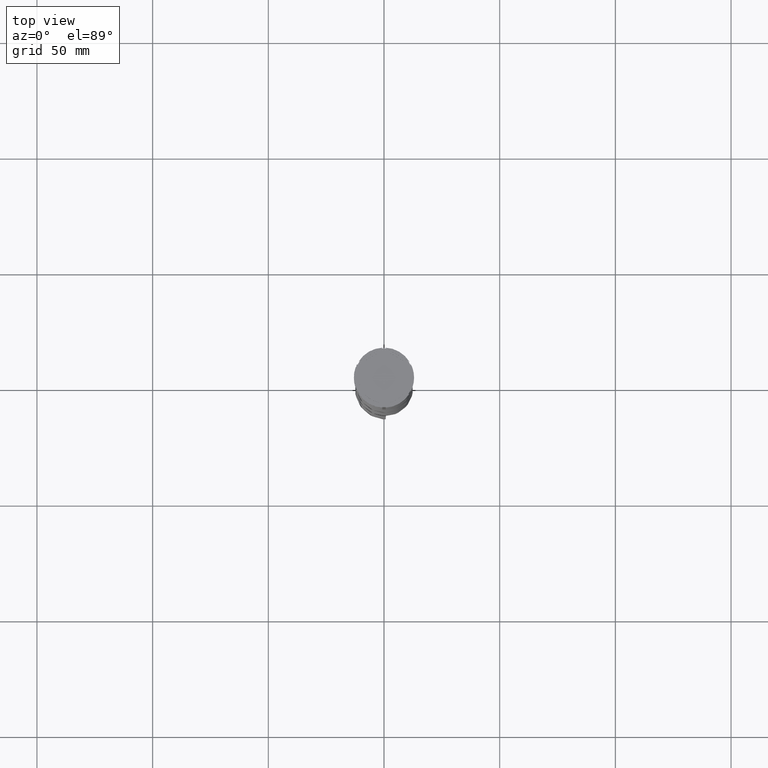
[diagram: clean part render]
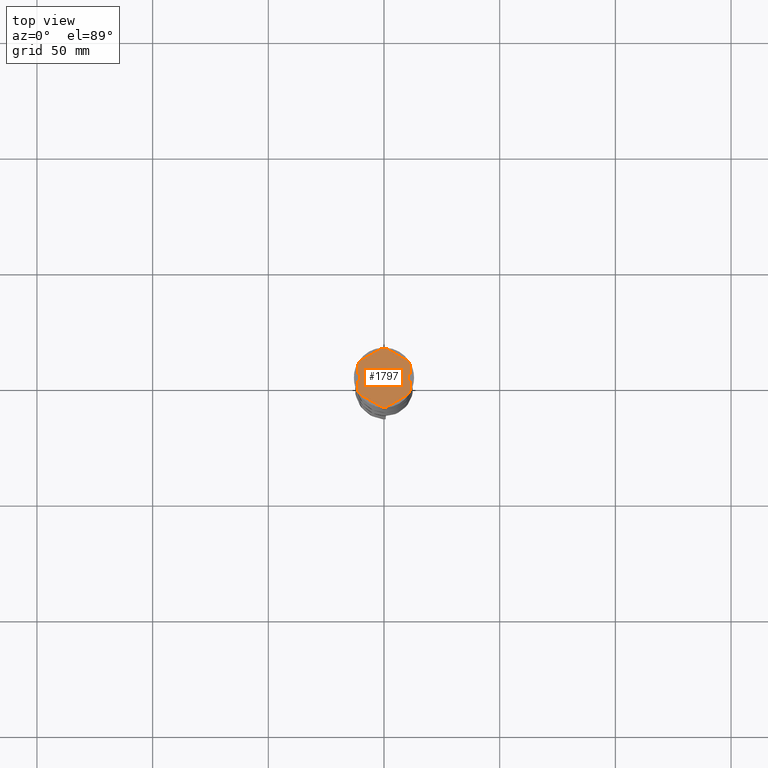
[diagram: same view with one face highlighted and labeled with its STEP entity id]
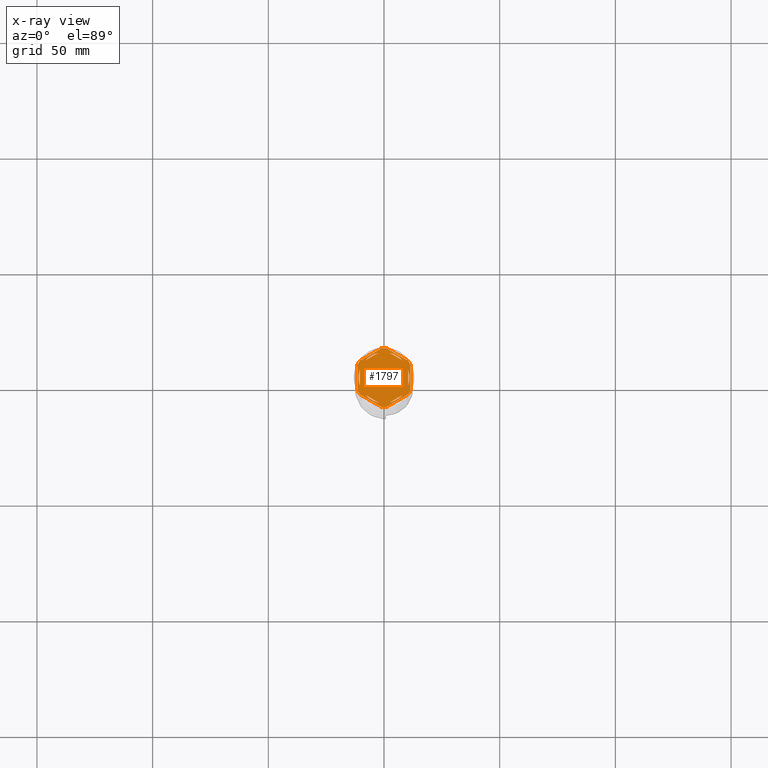
[diagram: x-ray of the same camera — body ghosted, the highlighted face saturated]
A machine part, top view. The second image highlights one B-rep face of the part: STEP entity #1797.
The next image is the same camera in x-ray: the body ghosted, the highlighted face saturated — about 0% of this face is hidden behind the body in this view.
In plain terms, the highlighted planar face has unit normal (0, 0, 1).
Its self-contained STEP definition (entity closure, byte-faithful):
#19 = ORIENTED_EDGE ( 'NONE', *, *, #2577, .T. ) ;
#22 = DIRECTION ( 'NONE',  ( 0.8660254037844387076, -0.4999999999999999445, 0.000000000000000000 ) ) ;
#77 = LINE ( 'NONE', #2863, #2668 ) ;
#79 = CARTESIAN_POINT ( 'NONE',  ( -11.50000000000000000, -6.639528095680696573, -1.000000000000000000 ) ) ;
#88 = DIRECTION ( 'NONE',  ( 1.000000000000000000, 0.000000000000000000, 0.000000000000000000 ) ) ;
#117 = VECTOR ( 'NONE', #1645, 999.9999999999998863 ) ;
#123 = VECTOR ( 'NONE', #3462, 1000.000000000000227 ) ;
#127 = CARTESIAN_POINT ( 'NONE',  ( 1.083095244168774673, -12.65373086058253982, -1.000000000000000000 ) ) ;
#131 = ORIENTED_EDGE ( 'NONE', *, *, #3052, .T. ) ;
#166 = PLANE ( 'NONE',  #1048 ) ;
#188 = ORIENTED_EDGE ( 'NONE', *, *, #2608, .F. ) ;
#212 = LINE ( 'NONE', #1259, #3471 ) ;
#245 = AXIS2_PLACEMENT_3D ( 'NONE', #1696, #3071, #622 ) ;
#312 = CIRCLE ( 'NONE', #1405, 11.00000000000000000 ) ;
#357 = EDGE_CURVE ( 'NONE', #1358, #3696, #312, .T. ) ;
#373 = ORIENTED_EDGE ( 'NONE', *, *, #2850, .F. ) ;
#410 = CARTESIAN_POINT ( 'NONE',  ( 8.089454172900138573, 7.453907108661105063, -1.000000000000000888 ) ) ;
#415 = VERTEX_POINT ( 'NONE', #803 ) ;
#460 = DIRECTION ( 'NONE',  ( -0.8660254037844385966, -0.5000000000000001110, 0.000000000000000000 ) ) ;
#464 = ORIENTED_EDGE ( 'NONE', *, *, #3767, .F. ) ;
#484 = ORIENTED_EDGE ( 'NONE', *, *, #3132, .F. ) ;
#543 = CIRCLE ( 'NONE', #3898, 11.00000000000000000 ) ;
#568 = CARTESIAN_POINT ( 'NONE',  ( -10.49999999999999822, -6.062177826491068622, -1.000000000000000888 ) ) ;
#571 = FACE_BOUND ( 'NONE', #3301, .T. ) ;
#589 = DIRECTION ( 'NONE',  ( 0.000000000000000000, 0.000000000000000000, 1.000000000000000000 ) ) ;
#595 = DIRECTION ( 'NONE',  ( 0.000000000000000000, 1.000000000000000000, 0.000000000000000000 ) ) ;
#611 = EDGE_CURVE ( 'NONE', #2413, #2872, #1114, .T. ) ;
#622 = DIRECTION ( 'NONE',  ( 1.000000000000000000, 7.105427357601001859E-15, 0.000000000000000000 ) ) ;
#632 = VERTEX_POINT ( 'NONE', #1627 ) ;
#639 = ORIENTED_EDGE ( 'NONE', *, *, #669, .F. ) ;
#647 = EDGE_CURVE ( 'NONE', #3730, #1195, #987, .T. ) ;
#669 = EDGE_CURVE ( 'NONE', #2634, #3007, #2796, .T. ) ;
#687 = ORIENTED_EDGE ( 'NONE', *, *, #2910, .F. ) ;
#704 = DIRECTION ( 'NONE',  ( 0.8660254037844385966, 0.4999999999999999445, 0.000000000000000000 ) ) ;
#734 = ORIENTED_EDGE ( 'NONE', *, *, #3569, .F. ) ;
#744 = VECTOR ( 'NONE', #942, 1000.000000000000000 ) ;
#762 = CARTESIAN_POINT ( 'NONE',  ( -10.41690475583121689, 7.264853426459546348, -1.000000000000000000 ) ) ;
#803 = CARTESIAN_POINT ( 'NONE',  ( 2.410545827099865868, -10.73262637081210791, -1.000000000000000888 ) ) ;
#825 = LINE ( 'NONE', #3590, #2310 ) ;
#859 = EDGE_CURVE ( 'NONE', #3212, #2624, #2004, .T. ) ;
#883 = EDGE_LOOP ( 'NONE', ( #1472, #484 ) ) ;
#889 = DIRECTION ( 'NONE',  ( 1.000000000000000000, 0.000000000000000000, -0.000000000000000000 ) ) ;
#919 = AXIS2_PLACEMENT_3D ( 'NONE', #1001, #1387, #3787 ) ;
#920 = CARTESIAN_POINT ( 'NONE',  ( 0.000000000000000000, 0.000000000000000000, -1.000000000000000000 ) ) ;
#942 = DIRECTION ( 'NONE',  ( -1.430775808321104180E-16, -1.000000000000000000, 0.000000000000000000 ) ) ;
#970 = CARTESIAN_POINT ( 'NONE',  ( 0.000000000000000000, 0.000000000000000000, -1.000000000000000000 ) ) ;
#978 = CARTESIAN_POINT ( 'NONE',  ( -10.49999999999999822, -3.278719262151000624, -1.000000000000000888 ) ) ;
#986 = CARTESIAN_POINT ( 'NONE',  ( -11.50000000000000000, -5.388877434122992582, -1.000000000000000000 ) ) ;
#987 = LINE ( 'NONE', #4085, #744 ) ;
#1001 = CARTESIAN_POINT ( 'NONE',  ( 0.000000000000000000, 0.000000000000000000, -1.000000000000000000 ) ) ;
#1007 = LINE ( 'NONE', #1760, #3038 ) ;
#1035 = CARTESIAN_POINT ( 'NONE',  ( 10.41690475583121156, 7.264853426459550789, -1.000000000000000000 ) ) ;
#1048 = AXIS2_PLACEMENT_3D ( 'NONE', #2976, #3725, #889 ) ;
#1114 = CIRCLE ( 'NONE', #245, 12.69999999999999929 ) ;
#1144 = EDGE_LOOP ( 'NONE', ( #1179, #3526 ) ) ;
#1156 = ORIENTED_EDGE ( 'NONE', *, *, #4395, .F. ) ;
#1179 = ORIENTED_EDGE ( 'NONE', *, *, #3632, .F. ) ;
#1195 = VERTEX_POINT ( 'NONE', #3093 ) ;
#1207 = CIRCLE ( 'NONE', #3175, 11.00000000000000000 ) ;
#1219 = LINE ( 'NONE', #2617, #1716 ) ;
#1247 = VERTEX_POINT ( 'NONE', #1290 ) ;
#1259 = CARTESIAN_POINT ( 'NONE',  ( -1.734723475976807094E-15, 12.12435565298214080, -1.000000000000000888 ) ) ;
#1279 = DIRECTION ( 'NONE',  ( -0.8660254037844384856, 0.5000000000000002220, 0.000000000000000000 ) ) ;
#1290 = CARTESIAN_POINT ( 'NONE',  ( -8.089454172900135021, 7.453907108661106840, -1.000000000000000888 ) ) ;
#1358 = VERTEX_POINT ( 'NONE', #2652 ) ;
#1378 = VERTEX_POINT ( 'NONE', #1819 ) ;
#1387 = DIRECTION ( 'NONE',  ( 0.000000000000000000, 0.000000000000000000, 1.000000000000000000 ) ) ;
#1405 = AXIS2_PLACEMENT_3D ( 'NONE', #1934, #4336, #3297 ) ;
#1468 = DIRECTION ( 'NONE',  ( -0.000000000000000000, -0.000000000000000000, -1.000000000000000000 ) ) ;
#1472 = ORIENTED_EDGE ( 'NONE', *, *, #859, .F. ) ;
#1499 = DIRECTION ( 'NONE',  ( -0.000000000000000000, -0.000000000000000000, -1.000000000000000000 ) ) ;
#1549 = ORIENTED_EDGE ( 'NONE', *, *, #3910, .T. ) ;
#1595 = VERTEX_POINT ( 'NONE', #762 ) ;
#1606 = CARTESIAN_POINT ( 'NONE',  ( -10.41690475583121334, -7.264853426459548125, -1.000000000000000000 ) ) ;
#1619 = LINE ( 'NONE', #2971, #117 ) ;
#1627 = CARTESIAN_POINT ( 'NONE',  ( 11.49999999999999822, 5.388877434122992582, -1.000000000000000000 ) ) ;
#1645 = DIRECTION ( 'NONE',  ( -0.8660254037844387076, -0.4999999999999999445, 0.000000000000000000 ) ) ;
#1653 = DIRECTION ( 'NONE',  ( 0.8660254037844385966, 0.5000000000000001110, -0.000000000000000000 ) ) ;
#1675 = CARTESIAN_POINT ( 'NONE',  ( 0.000000000000000000, 0.000000000000000000, -1.000000000000000000 ) ) ;
#1682 = EDGE_CURVE ( 'NONE', #3869, #632, #3825, .T. ) ;
#1696 = CARTESIAN_POINT ( 'NONE',  ( 0.000000000000000000, 0.000000000000000000, -1.000000000000000000 ) ) ;
#1699 = ORIENTED_EDGE ( 'NONE', *, *, #2829, .F. ) ;
#1716 = VECTOR ( 'NONE', #2527, 1000.000000000000000 ) ;
#1740 = CARTESIAN_POINT ( 'NONE',  ( -2.410545827099876082, -10.73262637081210435, -1.000000000000000888 ) ) ;
#1760 = CARTESIAN_POINT ( 'NONE',  ( 5.612359739892467248E-18, -13.27905619136138959, -1.000000000000000000 ) ) ;
#1770 = LINE ( 'NONE', #79, #123 ) ;
#1797 = ADVANCED_FACE ( 'NONE', ( #3638, #2997, #4038, #4353, #3294, #571, #2589 ), #166, .T. ) ;
#1809 = CARTESIAN_POINT ( 'NONE',  ( -11.50000000000000000, 5.388877434122992582, -1.000000000000000000 ) ) ;
#1819 = CARTESIAN_POINT ( 'NONE',  ( -8.089454172900133244, -7.453907108661111280, -1.000000000000000888 ) ) ;
#1840 = DIRECTION ( 'NONE',  ( 1.306360520641008153E-16, 1.000000000000000000, 0.000000000000000000 ) ) ;
#1934 = CARTESIAN_POINT ( 'NONE',  ( 0.000000000000000000, 0.000000000000000000, -1.000000000000000000 ) ) ;
#1978 = LINE ( 'NONE', #3362, #3615 ) ;
#1993 = DIRECTION ( 'NONE',  ( 1.000000000000000000, 0.000000000000000000, 0.000000000000000000 ) ) ;
#2004 = CIRCLE ( 'NONE', #2296, 11.00000000000000000 ) ;
#2013 = LINE ( 'NONE', #3061, #4472 ) ;
#2054 = DIRECTION ( 'NONE',  ( 1.000000000000000000, 1.243449787580175325E-14, 0.000000000000000000 ) ) ;
#2056 = EDGE_CURVE ( 'NONE', #415, #3191, #2806, .T. ) ;
#2057 = EDGE_LOOP ( 'NONE', ( #3054, #2115 ) ) ;
#2115 = ORIENTED_EDGE ( 'NONE', *, *, #3379, .F. ) ;
#2126 = VERTEX_POINT ( 'NONE', #2539 ) ;
#2165 = CIRCLE ( 'NONE', #3404, 11.00000000000000000 ) ;
#2170 = AXIS2_PLACEMENT_3D ( 'NONE', #3077, #4447, #2054 ) ;
#2171 = ORIENTED_EDGE ( 'NONE', *, *, #2303, .T. ) ;
#2211 = DIRECTION ( 'NONE',  ( 1.000000000000000000, -1.776356839400250465E-14, 0.000000000000000000 ) ) ;
#2249 = CARTESIAN_POINT ( 'NONE',  ( 1.083095244168781557, 12.65373086058254160, -1.000000000000000000 ) ) ;
#2267 = ORIENTED_EDGE ( 'NONE', *, *, #2683, .T. ) ;
#2290 = CARTESIAN_POINT ( 'NONE',  ( 0.000000000000000000, 0.000000000000000000, -1.000000000000000000 ) ) ;
#2296 = AXIS2_PLACEMENT_3D ( 'NONE', #2558, #3897, #88 ) ;
#2303 = EDGE_CURVE ( 'NONE', #3165, #2872, #2013, .T. ) ;
#2310 = VECTOR ( 'NONE', #460, 1000.000000000000114 ) ;
#2319 = DIRECTION ( 'NONE',  ( 1.000000000000000000, 0.000000000000000000, 0.000000000000000000 ) ) ;
#2340 = CARTESIAN_POINT ( 'NONE',  ( 10.41690475583121867, -7.264853426459537467, -1.000000000000000000 ) ) ;
#2381 = ORIENTED_EDGE ( 'NONE', *, *, #357, .F. ) ;
#2392 = CARTESIAN_POINT ( 'NONE',  ( -1.083095244168783333, 12.65373086058254160, -1.000000000000000000 ) ) ;
#2413 = VERTEX_POINT ( 'NONE', #1606 ) ;
#2471 = CARTESIAN_POINT ( 'NONE',  ( 0.000000000000000000, 0.000000000000000000, -1.000000000000000000 ) ) ;
#2515 = AXIS2_PLACEMENT_3D ( 'NONE', #3527, #1499, #2211 ) ;
#2523 = EDGE_LOOP ( 'NONE', ( #687, #373, #2381 ) ) ;
#2527 = DIRECTION ( 'NONE',  ( -0.8660254037844388186, 0.4999999999999997224, 0.000000000000000000 ) ) ;
#2539 = CARTESIAN_POINT ( 'NONE',  ( -2.410545827099867200, 10.73262637081210613, -1.000000000000000888 ) ) ;
#2540 = CARTESIAN_POINT ( 'NONE',  ( 11.49999999999999822, -5.388877434122996135, -1.000000000000000000 ) ) ;
#2558 = CARTESIAN_POINT ( 'NONE',  ( 0.000000000000000000, 0.000000000000000000, -1.000000000000000000 ) ) ;
#2560 = DIRECTION ( 'NONE',  ( 1.000000000000000000, 0.000000000000000000, 0.000000000000000000 ) ) ;
#2577 = EDGE_CURVE ( 'NONE', #2970, #1595, #825, .T. ) ;
#2589 = FACE_OUTER_BOUND ( 'NONE', #4141, .T. ) ;
#2603 = AXIS2_PLACEMENT_3D ( 'NONE', #970, #3648, #2756 ) ;
#2608 = EDGE_CURVE ( 'NONE', #3238, #3557, #4324, .T. ) ;
#2617 = CARTESIAN_POINT ( 'NONE',  ( 11.50000000000000000, 6.639528095680698350, -1.000000000000000000 ) ) ;
#2624 = VERTEX_POINT ( 'NONE', #4288 ) ;
#2634 = VERTEX_POINT ( 'NONE', #127 ) ;
#2652 = CARTESIAN_POINT ( 'NONE',  ( -11.00000000000000000, 0.000000000000000000, -1.000000000000000000 ) ) ;
#2668 = VECTOR ( 'NONE', #1840, 1000.000000000000000 ) ;
#2683 = EDGE_CURVE ( 'NONE', #3869, #3251, #1219, .T. ) ;
#2734 = EDGE_LOOP ( 'NONE', ( #3040, #3928 ) ) ;
#2756 = DIRECTION ( 'NONE',  ( 1.000000000000000000, 0.000000000000000000, 0.000000000000000000 ) ) ;
#2761 = EDGE_CURVE ( 'NONE', #3238, #632, #77, .T. ) ;
#2791 = ORIENTED_EDGE ( 'NONE', *, *, #611, .F. ) ;
#2796 = CIRCLE ( 'NONE', #3522, 12.69999999999999929 ) ;
#2806 = CIRCLE ( 'NONE', #3168, 11.00000000000000000 ) ;
#2829 = EDGE_CURVE ( 'NONE', #1247, #2126, #212, .T. ) ;
#2835 = LINE ( 'NONE', #3152, #4047 ) ;
#2850 = EDGE_CURVE ( 'NONE', #3696, #4373, #1978, .T. ) ;
#2863 = CARTESIAN_POINT ( 'NONE',  ( 11.49999999999999822, -6.639528095680694797, -1.000000000000000000 ) ) ;
#2872 = VERTEX_POINT ( 'NONE', #986 ) ;
#2910 = EDGE_CURVE ( 'NONE', #4373, #1358, #543, .T. ) ;
#2924 = DIRECTION ( 'NONE',  ( 0.000000000000000000, -1.000000000000000000, 0.000000000000000000 ) ) ;
#2955 = CARTESIAN_POINT ( 'NONE',  ( 0.000000000000000000, 0.000000000000000000, -1.000000000000000000 ) ) ;
#2970 = VERTEX_POINT ( 'NONE', #2392 ) ;
#2971 = CARTESIAN_POINT ( 'NONE',  ( -2.602085213965210642E-15, -12.12435565298214080, -1.000000000000000888 ) ) ;
#2976 = CARTESIAN_POINT ( 'NONE',  ( 0.000000000000000000, 0.000000000000000000, -1.000000000000000000 ) ) ;
#2991 = DIRECTION ( 'NONE',  ( 0.000000000000000000, 0.000000000000000000, 1.000000000000000000 ) ) ;
#2997 = FACE_BOUND ( 'NONE', #2734, .T. ) ;
#3007 = VERTEX_POINT ( 'NONE', #3343 ) ;
#3011 = VERTEX_POINT ( 'NONE', #1740 ) ;
#3038 = VECTOR ( 'NONE', #704, 1000.000000000000114 ) ;
#3040 = ORIENTED_EDGE ( 'NONE', *, *, #3521, .F. ) ;
#3052 = EDGE_CURVE ( 'NONE', #2634, #3557, #1007, .T. ) ;
#3054 = ORIENTED_EDGE ( 'NONE', *, *, #2056, .F. ) ;
#3057 = CARTESIAN_POINT ( 'NONE',  ( -10.49999999999999822, 3.278719262151000624, -1.000000000000000888 ) ) ;
#3061 = CARTESIAN_POINT ( 'NONE',  ( -11.50000000000000000, 6.639528095680691244, -1.000000000000000000 ) ) ;
#3071 = DIRECTION ( 'NONE',  ( -0.000000000000000000, -0.000000000000000000, -1.000000000000000000 ) ) ;
#3077 = CARTESIAN_POINT ( 'NONE',  ( 0.000000000000000000, 0.000000000000000000, -1.000000000000000000 ) ) ;
#3084 = CARTESIAN_POINT ( 'NONE',  ( 10.49999999999999467, 3.278719262151012170, -1.000000000000000888 ) ) ;
#3093 = CARTESIAN_POINT ( 'NONE',  ( 10.49999999999999467, -3.278719262151014835, -1.000000000000000888 ) ) ;
#3132 = EDGE_CURVE ( 'NONE', #2624, #3212, #2835, .T. ) ;
#3152 = CARTESIAN_POINT ( 'NONE',  ( 10.49999999999999467, 6.062177826491072175, -1.000000000000000888 ) ) ;
#3165 = VERTEX_POINT ( 'NONE', #1809 ) ;
#3168 = AXIS2_PLACEMENT_3D ( 'NONE', #2471, #3582, #2560 ) ;
#3175 = AXIS2_PLACEMENT_3D ( 'NONE', #3721, #589, #1993 ) ;
#3191 = VERTEX_POINT ( 'NONE', #4280 ) ;
#3212 = VERTEX_POINT ( 'NONE', #410 ) ;
#3228 = DIRECTION ( 'NONE',  ( 1.000000000000000000, 0.000000000000000000, 0.000000000000000000 ) ) ;
#3238 = VERTEX_POINT ( 'NONE', #2540 ) ;
#3251 = VERTEX_POINT ( 'NONE', #2249 ) ;
#3294 = FACE_BOUND ( 'NONE', #2523, .T. ) ;
#3297 = DIRECTION ( 'NONE',  ( 1.000000000000000000, 0.000000000000000000, 0.000000000000000000 ) ) ;
#3301 = EDGE_LOOP ( 'NONE', ( #734, #1699 ) ) ;
#3320 = DIRECTION ( 'NONE',  ( 0.000000000000000000, 0.000000000000000000, 1.000000000000000000 ) ) ;
#3343 = CARTESIAN_POINT ( 'NONE',  ( -1.083095244168779780, -12.65373086058253982, -1.000000000000000000 ) ) ;
#3362 = CARTESIAN_POINT ( 'NONE',  ( -10.49999999999999822, 6.062177826491068622, -1.000000000000000888 ) ) ;
#3379 = EDGE_CURVE ( 'NONE', #3191, #415, #1619, .T. ) ;
#3404 = AXIS2_PLACEMENT_3D ( 'NONE', #2290, #2991, #2319 ) ;
#3462 = DIRECTION ( 'NONE',  ( 0.8660254037844387076, -0.4999999999999997780, 0.000000000000000000 ) ) ;
#3471 = VECTOR ( 'NONE', #1653, 1000.000000000000000 ) ;
#3521 = EDGE_CURVE ( 'NONE', #1195, #3730, #2165, .T. ) ;
#3522 = AXIS2_PLACEMENT_3D ( 'NONE', #1675, #4441, #4042 ) ;
#3526 = ORIENTED_EDGE ( 'NONE', *, *, #4128, .F. ) ;
#3527 = CARTESIAN_POINT ( 'NONE',  ( 0.000000000000000000, 0.000000000000000000, -1.000000000000000000 ) ) ;
#3532 = AXIS2_PLACEMENT_3D ( 'NONE', #2955, #1468, #3228 ) ;
#3545 = CIRCLE ( 'NONE', #2170, 12.69999999999999929 ) ;
#3557 = VERTEX_POINT ( 'NONE', #2340 ) ;
#3569 = EDGE_CURVE ( 'NONE', #2126, #1247, #1207, .T. ) ;
#3582 = DIRECTION ( 'NONE',  ( 0.000000000000000000, 0.000000000000000000, 1.000000000000000000 ) ) ;
#3590 = CARTESIAN_POINT ( 'NONE',  ( 0.000000000000000000, 13.27905619136138959, -1.000000000000000000 ) ) ;
#3615 = VECTOR ( 'NONE', #595, 1000.000000000000000 ) ;
#3632 = EDGE_CURVE ( 'NONE', #1378, #3011, #3902, .T. ) ;
#3638 = FACE_BOUND ( 'NONE', #883, .T. ) ;
#3648 = DIRECTION ( 'NONE',  ( -0.000000000000000000, -0.000000000000000000, -1.000000000000000000 ) ) ;
#3696 = VERTEX_POINT ( 'NONE', #978 ) ;
#3721 = CARTESIAN_POINT ( 'NONE',  ( 0.000000000000000000, 0.000000000000000000, -1.000000000000000000 ) ) ;
#3725 = DIRECTION ( 'NONE',  ( 0.000000000000000000, 0.000000000000000000, 1.000000000000000000 ) ) ;
#3730 = VERTEX_POINT ( 'NONE', #3084 ) ;
#3767 = EDGE_CURVE ( 'NONE', #3165, #1595, #4258, .T. ) ;
#3787 = DIRECTION ( 'NONE',  ( 1.000000000000000000, 0.000000000000000000, 0.000000000000000000 ) ) ;
#3825 = CIRCLE ( 'NONE', #2515, 12.69999999999999929 ) ;
#3869 = VERTEX_POINT ( 'NONE', #1035 ) ;
#3897 = DIRECTION ( 'NONE',  ( 0.000000000000000000, 0.000000000000000000, 1.000000000000000000 ) ) ;
#3898 = AXIS2_PLACEMENT_3D ( 'NONE', #920, #3320, #4063 ) ;
#3902 = CIRCLE ( 'NONE', #919, 11.00000000000000000 ) ;
#3907 = VECTOR ( 'NONE', #1279, 1000.000000000000000 ) ;
#3910 = EDGE_CURVE ( 'NONE', #2413, #3007, #1770, .T. ) ;
#3928 = ORIENTED_EDGE ( 'NONE', *, *, #647, .F. ) ;
#3936 = ORIENTED_EDGE ( 'NONE', *, *, #2761, .T. ) ;
#4038 = FACE_BOUND ( 'NONE', #2057, .T. ) ;
#4042 = DIRECTION ( 'NONE',  ( 1.000000000000000000, 0.000000000000000000, 0.000000000000000000 ) ) ;
#4047 = VECTOR ( 'NONE', #22, 999.9999999999998863 ) ;
#4063 = DIRECTION ( 'NONE',  ( 1.000000000000000000, 0.000000000000000000, 0.000000000000000000 ) ) ;
#4085 = CARTESIAN_POINT ( 'NONE',  ( 10.49999999999999289, -6.062177826491073063, -1.000000000000000888 ) ) ;
#4128 = EDGE_CURVE ( 'NONE', #3011, #1378, #4436, .T. ) ;
#4141 = EDGE_LOOP ( 'NONE', ( #3936, #4264, #2267, #1156, #19, #464, #2171, #2791, #1549, #639, #131, #188 ) ) ;
#4258 = CIRCLE ( 'NONE', #2603, 12.69999999999999929 ) ;
#4264 = ORIENTED_EDGE ( 'NONE', *, *, #1682, .F. ) ;
#4280 = CARTESIAN_POINT ( 'NONE',  ( 8.089454172900135021, -7.453907108661109504, -1.000000000000000888 ) ) ;
#4288 = CARTESIAN_POINT ( 'NONE',  ( 2.410545827099861871, 10.73262637081210791, -1.000000000000000888 ) ) ;
#4324 = CIRCLE ( 'NONE', #3532, 12.69999999999999929 ) ;
#4336 = DIRECTION ( 'NONE',  ( 0.000000000000000000, 0.000000000000000000, 1.000000000000000000 ) ) ;
#4353 = FACE_BOUND ( 'NONE', #1144, .T. ) ;
#4373 = VERTEX_POINT ( 'NONE', #3057 ) ;
#4395 = EDGE_CURVE ( 'NONE', #2970, #3251, #3545, .T. ) ;
#4436 = LINE ( 'NONE', #568, #3907 ) ;
#4441 = DIRECTION ( 'NONE',  ( -0.000000000000000000, -0.000000000000000000, -1.000000000000000000 ) ) ;
#4447 = DIRECTION ( 'NONE',  ( -0.000000000000000000, -0.000000000000000000, -1.000000000000000000 ) ) ;
#4472 = VECTOR ( 'NONE', #2924, 1000.000000000000000 ) ;